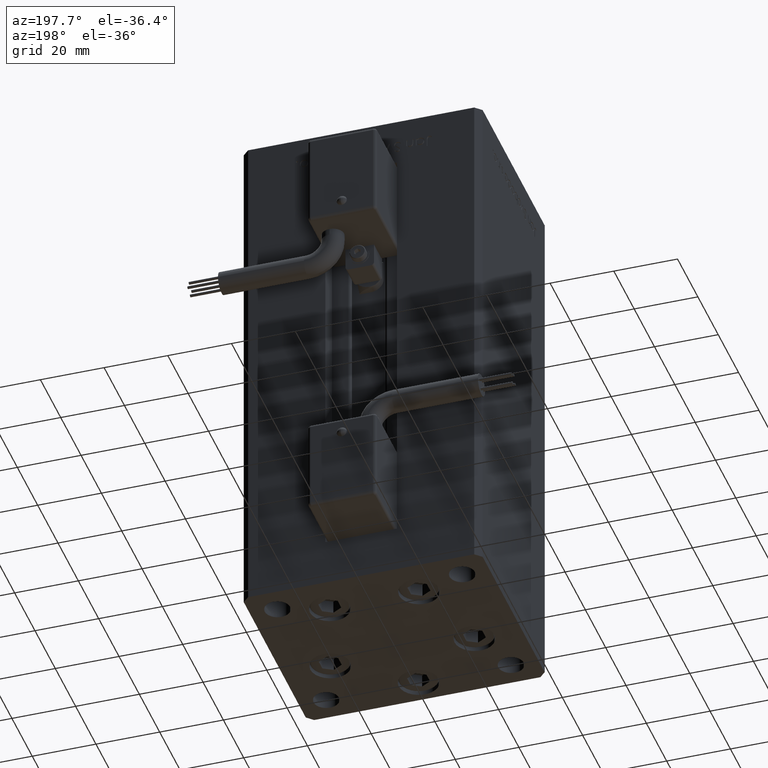
[diagram: clean part render]
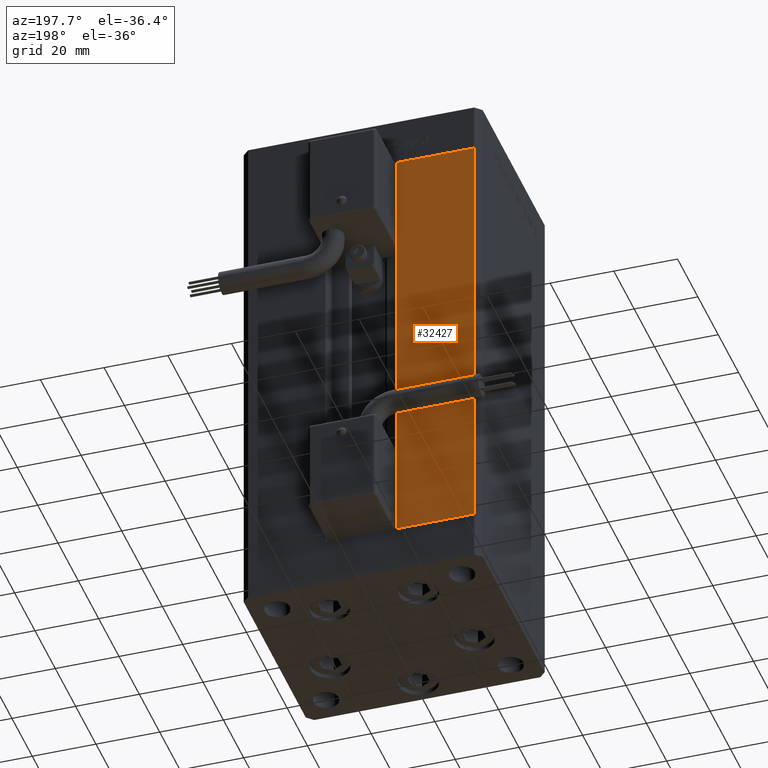
[diagram: same view with one face highlighted and labeled with its STEP entity id]
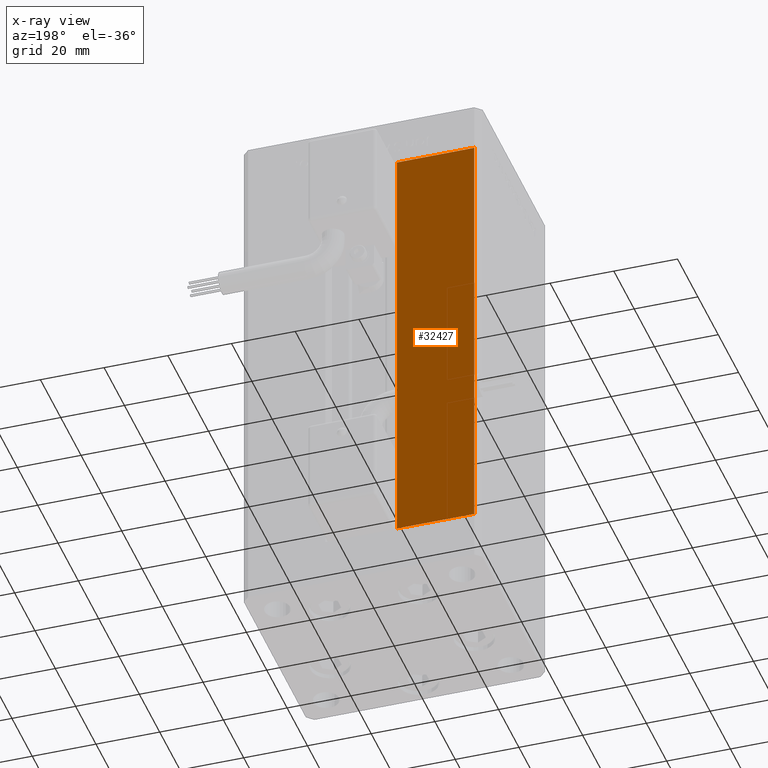
[diagram: x-ray of the same camera — body ghosted, the highlighted face saturated]
A machine part, auxiliary view. The second image highlights one B-rep face of the part: STEP entity #32427.
The next image is the same camera in x-ray: the body ghosted, the highlighted face saturated — about 0% of this face is hidden behind the body in this view.
In plain terms, the highlighted planar face has unit normal (0, -1, 0).
Its self-contained STEP definition (entity closure, byte-faithful):
#496 = DIRECTION ( 'NONE',  ( 0.000000000000000000, -0.000000000000000000, -1.000000000000000000 ) ) ;
#982 = EDGE_CURVE ( 'NONE', #54363, #36017, #28486, .T. ) ;
#1480 = VECTOR ( 'NONE', #49263, 1000.000000000000000 ) ;
#2461 = CARTESIAN_POINT ( 'NONE',  ( -11.25000000000000178, 32.49999999999999289, 136.0000000000000000 ) ) ;
#3349 = CARTESIAN_POINT ( 'NONE',  ( -35.50000000000000000, 32.49999999999999289, 136.0000000000000000 ) ) ;
#4112 = CARTESIAN_POINT ( 'NONE',  ( -11.25000000000000178, 32.49999999999999289, 136.0000000000000000 ) ) ;
#4507 = VERTEX_POINT ( 'NONE', #48433 ) ;
#7116 = DIRECTION ( 'NONE',  ( -0.000000000000000000, -0.000000000000000000, 1.000000000000000000 ) ) ;
#10916 = CARTESIAN_POINT ( 'NONE',  ( -11.25000000000000178, 32.49999999999999289, 0.000000000000000000 ) ) ;
#11391 = EDGE_LOOP ( 'NONE', ( #43418, #24223, #47084, #36286 ) ) ;
#11682 = CARTESIAN_POINT ( 'NONE',  ( -35.50000000000000000, 32.49999999999999289, 0.000000000000000000 ) ) ;
#13885 = EDGE_CURVE ( 'NONE', #4507, #29263, #20829, .T. ) ;
#14531 = LINE ( 'NONE', #10916, #1480 ) ;
#14549 = AXIS2_PLACEMENT_3D ( 'NONE', #4112, #46626, #496 ) ;
#20829 = LINE ( 'NONE', #3349, #38057 ) ;
#21315 = CARTESIAN_POINT ( 'NONE',  ( -11.25000000000000178, 32.49999999999999289, 136.0000000000000000 ) ) ;
#21863 = LINE ( 'NONE', #21315, #32957 ) ;
#23043 = VECTOR ( 'NONE', #7116, 1000.000000000000000 ) ;
#24223 = ORIENTED_EDGE ( 'NONE', *, *, #982, .F. ) ;
#24975 = EDGE_CURVE ( 'NONE', #4507, #36017, #21863, .T. ) ;
#25845 = PLANE ( 'NONE',  #14549 ) ;
#28486 = LINE ( 'NONE', #32653, #23043 ) ;
#29263 = VERTEX_POINT ( 'NONE', #11682 ) ;
#32427 = ADVANCED_FACE ( 'NONE', ( #52254 ), #25845, .F. ) ;
#32653 = CARTESIAN_POINT ( 'NONE',  ( -11.25000000000000178, 32.49999999999999289, 0.000000000000000000 ) ) ;
#32957 = VECTOR ( 'NONE', #38829, 1000.000000000000000 ) ;
#36017 = VERTEX_POINT ( 'NONE', #2461 ) ;
#36286 = ORIENTED_EDGE ( 'NONE', *, *, #13885, .F. ) ;
#37521 = DIRECTION ( 'NONE',  ( -0.000000000000000000, -0.000000000000000000, -1.000000000000000000 ) ) ;
#38057 = VECTOR ( 'NONE', #37521, 1000.000000000000000 ) ;
#38829 = DIRECTION ( 'NONE',  ( 1.000000000000000000, 0.000000000000000000, 0.000000000000000000 ) ) ;
#39486 = EDGE_CURVE ( 'NONE', #54363, #29263, #14531, .T. ) ;
#43418 = ORIENTED_EDGE ( 'NONE', *, *, #24975, .T. ) ;
#44776 = CARTESIAN_POINT ( 'NONE',  ( -11.25000000000000178, 32.49999999999999289, 0.000000000000000000 ) ) ;
#46626 = DIRECTION ( 'NONE',  ( 0.000000000000000000, -1.000000000000000000, 0.000000000000000000 ) ) ;
#47084 = ORIENTED_EDGE ( 'NONE', *, *, #39486, .T. ) ;
#48433 = CARTESIAN_POINT ( 'NONE',  ( -35.50000000000000000, 32.49999999999999289, 136.0000000000000000 ) ) ;
#49263 = DIRECTION ( 'NONE',  ( -1.000000000000000000, 0.000000000000000000, 0.000000000000000000 ) ) ;
#52254 = FACE_OUTER_BOUND ( 'NONE', #11391, .T. ) ;
#54363 = VERTEX_POINT ( 'NONE', #44776 ) ;